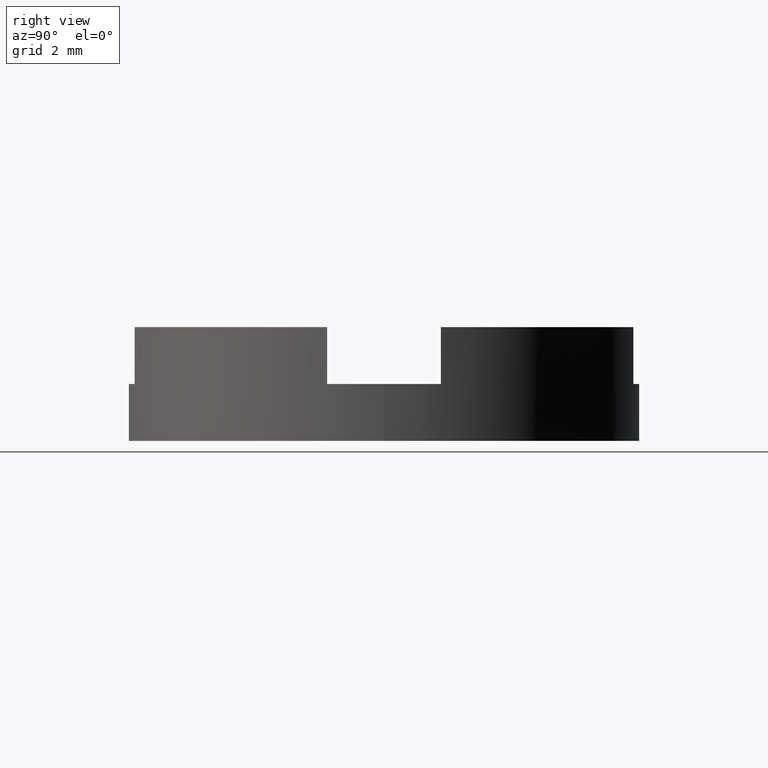
[diagram: clean part render]
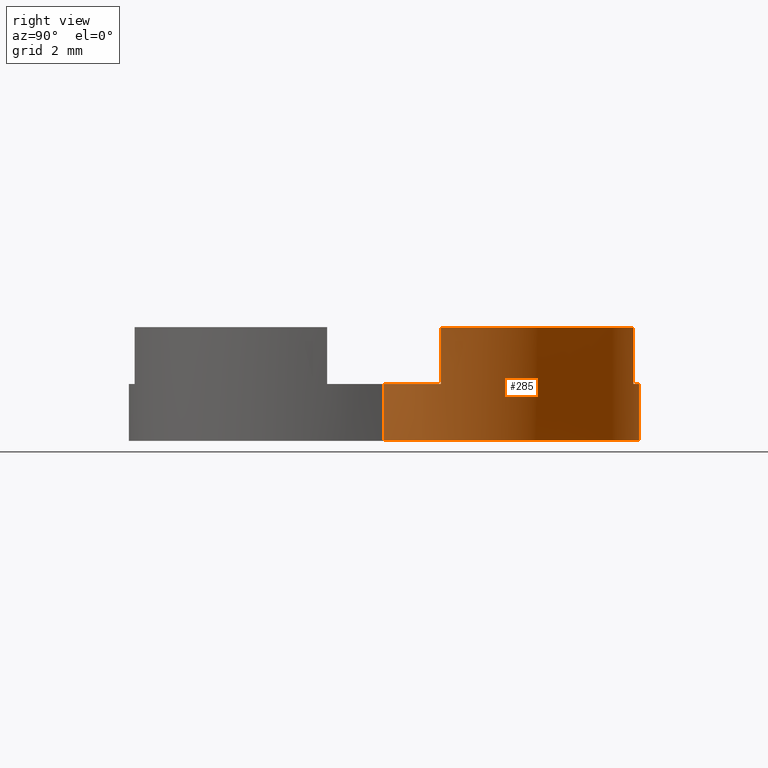
[diagram: same view with one face highlighted and labeled with its STEP entity id]
A machine part, right view. The second image highlights one B-rep face of the part: STEP entity #285.
In plain terms, the highlighted cylindrical surface (partial cylindrical patch) has radius 4.5 mm, axis along (-0, -0, -1).
Its self-contained STEP definition (entity closure, byte-faithful):
#2 = CARTESIAN_POINT ( 'NONE',  ( 0.000000000000000000, 0.000000000000000000, 1.000000000000000000 ) ) ;
#8 = DIRECTION ( 'NONE',  ( 0.000000000000000000, 0.000000000000000000, 1.000000000000000000 ) ) ;
#13 = DIRECTION ( 'NONE',  ( 1.000000000000000000, 0.000000000000000000, 0.000000000000000000 ) ) ;
#22 = AXIS2_PLACEMENT_3D ( 'NONE', #163, #533, #231 ) ;
#24 = VERTEX_POINT ( 'NONE', #235 ) ;
#26 = DIRECTION ( 'NONE',  ( -1.000000000000000000, 0.000000000000000000, 0.000000000000000000 ) ) ;
#40 = DIRECTION ( 'NONE',  ( 0.000000000000000000, 0.000000000000000000, 1.000000000000000000 ) ) ;
#50 = EDGE_CURVE ( 'NONE', #302, #504, #117, .T. ) ;
#58 = VECTOR ( 'NONE', #369, 1000.000000000000000 ) ;
#62 = DIRECTION ( 'NONE',  ( -0.000000000000000000, -0.000000000000000000, -1.000000000000000000 ) ) ;
#74 = VERTEX_POINT ( 'NONE', #540 ) ;
#85 = CYLINDRICAL_SURFACE ( 'NONE', #700, 4.500000000000000000 ) ;
#103 = EDGE_CURVE ( 'NONE', #24, #574, #113, .T. ) ;
#108 = CARTESIAN_POINT ( 'NONE',  ( -4.500000000000000000, 0.000000000000000000, 2.000000000000000000 ) ) ;
#109 = CIRCLE ( 'NONE', #22, 4.500000000000000000 ) ;
#113 = LINE ( 'NONE', #108, #747 ) ;
#116 = CARTESIAN_POINT ( 'NONE',  ( -4.387482193696129684, 0.9999999999996975752, 2.000000000000000000 ) ) ;
#117 = LINE ( 'NONE', #543, #425 ) ;
#118 = DIRECTION ( 'NONE',  ( 0.000000000000000000, -0.000000000000000000, -1.000000000000000000 ) ) ;
#120 = CIRCLE ( 'NONE', #774, 4.500000000000000000 ) ;
#130 = EDGE_CURVE ( 'NONE', #265, #745, #564, .T. ) ;
#138 = CARTESIAN_POINT ( 'NONE',  ( -4.387482193696129684, 0.9999999999996975752, 1.000000000000000000 ) ) ;
#148 = CARTESIAN_POINT ( 'NONE',  ( 0.000000000000000000, 0.000000000000000000, 2.000000000000000000 ) ) ;
#151 = AXIS2_PLACEMENT_3D ( 'NONE', #240, #490, #13 ) ;
#152 = ORIENTED_EDGE ( 'NONE', *, *, #717, .T. ) ;
#163 = CARTESIAN_POINT ( 'NONE',  ( 0.000000000000000000, 0.000000000000000000, 1.000000000000000000 ) ) ;
#174 = VECTOR ( 'NONE', #62, 1000.000000000000000 ) ;
#177 = CARTESIAN_POINT ( 'NONE',  ( 1.000000000000000222, 4.387482193696060406, 2.000000000000000000 ) ) ;
#183 = CIRCLE ( 'NONE', #473, 4.500000000000000000 ) ;
#196 = DIRECTION ( 'NONE',  ( -0.000000000000000000, -0.000000000000000000, -1.000000000000000000 ) ) ;
#197 = ORIENTED_EDGE ( 'NONE', *, *, #474, .T. ) ;
#211 = EDGE_CURVE ( 'NONE', #275, #628, #254, .T. ) ;
#214 = VERTEX_POINT ( 'NONE', #742 ) ;
#225 = EDGE_CURVE ( 'NONE', #214, #745, #637, .T. ) ;
#231 = DIRECTION ( 'NONE',  ( -1.000000000000000000, 0.000000000000000000, 0.000000000000000000 ) ) ;
#235 = CARTESIAN_POINT ( 'NONE',  ( -4.500000000000000000, 0.000000000000000000, 1.000000000000000000 ) ) ;
#240 = CARTESIAN_POINT ( 'NONE',  ( 0.000000000000000000, 0.000000000000000000, 1.000000000000000000 ) ) ;
#245 = ORIENTED_EDGE ( 'NONE', *, *, #130, .T. ) ;
#251 = CARTESIAN_POINT ( 'NONE',  ( 1.000000000000000222, 4.387482193696060406, 2.000000000000000000 ) ) ;
#254 = LINE ( 'NONE', #499, #510 ) ;
#265 = VERTEX_POINT ( 'NONE', #677 ) ;
#275 = VERTEX_POINT ( 'NONE', #138 ) ;
#284 = DIRECTION ( 'NONE',  ( 0.000000000000000000, 0.000000000000000000, 1.000000000000000000 ) ) ;
#285 = ADVANCED_FACE ( 'NONE', ( #450 ), #85, .T. ) ;
#287 = LINE ( 'NONE', #408, #547 ) ;
#292 = EDGE_CURVE ( 'NONE', #491, #628, #120, .T. ) ;
#302 = VERTEX_POINT ( 'NONE', #685 ) ;
#307 = LINE ( 'NONE', #374, #174 ) ;
#316 = DIRECTION ( 'NONE',  ( 1.000000000000000000, 0.000000000000000000, 0.000000000000000000 ) ) ;
#336 = EDGE_LOOP ( 'NONE', ( #546, #730, #597, #451, #152, #360, #646, #768, #582, #245, #418, #197 ) ) ;
#360 = ORIENTED_EDGE ( 'NONE', *, *, #211, .T. ) ;
#369 = DIRECTION ( 'NONE',  ( 0.000000000000000000, 0.000000000000000000, 1.000000000000000000 ) ) ;
#374 = CARTESIAN_POINT ( 'NONE',  ( -0.9999999999999997780, 4.387482193696060406, 2.000000000000000000 ) ) ;
#397 = CARTESIAN_POINT ( 'NONE',  ( 0.000000000000000000, 0.000000000000000000, 0.000000000000000000 ) ) ;
#408 = CARTESIAN_POINT ( 'NONE',  ( 4.387482193696050636, 1.000000000000045519, 2.000000000000000000 ) ) ;
#417 = CIRCLE ( 'NONE', #151, 4.500000000000000000 ) ;
#418 = ORIENTED_EDGE ( 'NONE', *, *, #225, .F. ) ;
#425 = VECTOR ( 'NONE', #489, 1000.000000000000000 ) ;
#442 = AXIS2_PLACEMENT_3D ( 'NONE', #623, #447, #316 ) ;
#447 = DIRECTION ( 'NONE',  ( 0.000000000000000000, 0.000000000000000000, 1.000000000000000000 ) ) ;
#450 = FACE_OUTER_BOUND ( 'NONE', #336, .T. ) ;
#451 = ORIENTED_EDGE ( 'NONE', *, *, #103, .F. ) ;
#465 = EDGE_CURVE ( 'NONE', #560, #302, #109, .T. ) ;
#466 = CARTESIAN_POINT ( 'NONE',  ( -4.500000000000000000, 0.000000000000000000, 0.000000000000000000 ) ) ;
#473 = AXIS2_PLACEMENT_3D ( 'NONE', #2, #118, #551 ) ;
#474 = EDGE_CURVE ( 'NONE', #214, #560, #287, .T. ) ;
#478 = DIRECTION ( 'NONE',  ( -0.000000000000000000, -0.000000000000000000, -1.000000000000000000 ) ) ;
#479 = CARTESIAN_POINT ( 'NONE',  ( -0.9999999999999997780, 4.387482193696060406, 2.000000000000000000 ) ) ;
#489 = DIRECTION ( 'NONE',  ( -0.000000000000000000, -0.000000000000000000, -1.000000000000000000 ) ) ;
#490 = DIRECTION ( 'NONE',  ( 0.000000000000000000, -0.000000000000000000, 1.000000000000000000 ) ) ;
#491 = VERTEX_POINT ( 'NONE', #479 ) ;
#499 = CARTESIAN_POINT ( 'NONE',  ( -4.387482193696129684, 0.9999999999996975752, 2.000000000000000000 ) ) ;
#504 = VERTEX_POINT ( 'NONE', #661 ) ;
#510 = VECTOR ( 'NONE', #8, 1000.000000000000000 ) ;
#533 = DIRECTION ( 'NONE',  ( 0.000000000000000000, 0.000000000000000000, -1.000000000000000000 ) ) ;
#540 = CARTESIAN_POINT ( 'NONE',  ( -0.9999999999999997780, 4.387482193696060406, 1.000000000000000000 ) ) ;
#543 = CARTESIAN_POINT ( 'NONE',  ( 4.500000000000000000, 5.510910596163088569E-16, 2.000000000000000000 ) ) ;
#544 = CARTESIAN_POINT ( 'NONE',  ( 4.387482193696050636, 1.000000000000045519, 1.000000000000000000 ) ) ;
#546 = ORIENTED_EDGE ( 'NONE', *, *, #465, .T. ) ;
#547 = VECTOR ( 'NONE', #718, 1000.000000000000000 ) ;
#549 = AXIS2_PLACEMENT_3D ( 'NONE', #397, #40, #779 ) ;
#551 = DIRECTION ( 'NONE',  ( -1.000000000000000000, 0.000000000000000000, 0.000000000000000000 ) ) ;
#560 = VERTEX_POINT ( 'NONE', #544 ) ;
#564 = LINE ( 'NONE', #251, #58 ) ;
#574 = VERTEX_POINT ( 'NONE', #466 ) ;
#582 = ORIENTED_EDGE ( 'NONE', *, *, #769, .F. ) ;
#597 = ORIENTED_EDGE ( 'NONE', *, *, #647, .T. ) ;
#623 = CARTESIAN_POINT ( 'NONE',  ( 0.000000000000000000, 0.000000000000000000, 2.000000000000000000 ) ) ;
#628 = VERTEX_POINT ( 'NONE', #116 ) ;
#633 = DIRECTION ( 'NONE',  ( 1.000000000000000000, 0.000000000000000000, 0.000000000000000000 ) ) ;
#637 = CIRCLE ( 'NONE', #442, 4.500000000000000000 ) ;
#646 = ORIENTED_EDGE ( 'NONE', *, *, #292, .F. ) ;
#647 = EDGE_CURVE ( 'NONE', #504, #574, #733, .T. ) ;
#661 = CARTESIAN_POINT ( 'NONE',  ( 4.500000000000000000, 5.510910596163088569E-16, 0.000000000000000000 ) ) ;
#677 = CARTESIAN_POINT ( 'NONE',  ( 1.000000000000000222, 4.387482193696060406, 1.000000000000000000 ) ) ;
#685 = CARTESIAN_POINT ( 'NONE',  ( 4.500000000000000000, 5.510910596163088569E-16, 1.000000000000000000 ) ) ;
#700 = AXIS2_PLACEMENT_3D ( 'NONE', #761, #196, #26 ) ;
#717 = EDGE_CURVE ( 'NONE', #24, #275, #183, .T. ) ;
#718 = DIRECTION ( 'NONE',  ( -0.000000000000000000, -0.000000000000000000, -1.000000000000000000 ) ) ;
#730 = ORIENTED_EDGE ( 'NONE', *, *, #50, .T. ) ;
#733 = CIRCLE ( 'NONE', #549, 4.500000000000000000 ) ;
#742 = CARTESIAN_POINT ( 'NONE',  ( 4.387482193696050636, 1.000000000000045519, 2.000000000000000000 ) ) ;
#745 = VERTEX_POINT ( 'NONE', #177 ) ;
#747 = VECTOR ( 'NONE', #478, 1000.000000000000000 ) ;
#761 = CARTESIAN_POINT ( 'NONE',  ( 0.000000000000000000, 0.000000000000000000, 2.000000000000000000 ) ) ;
#768 = ORIENTED_EDGE ( 'NONE', *, *, #776, .T. ) ;
#769 = EDGE_CURVE ( 'NONE', #265, #74, #417, .T. ) ;
#774 = AXIS2_PLACEMENT_3D ( 'NONE', #148, #284, #633 ) ;
#776 = EDGE_CURVE ( 'NONE', #491, #74, #307, .T. ) ;
#779 = DIRECTION ( 'NONE',  ( 1.000000000000000000, 0.000000000000000000, 0.000000000000000000 ) ) ;